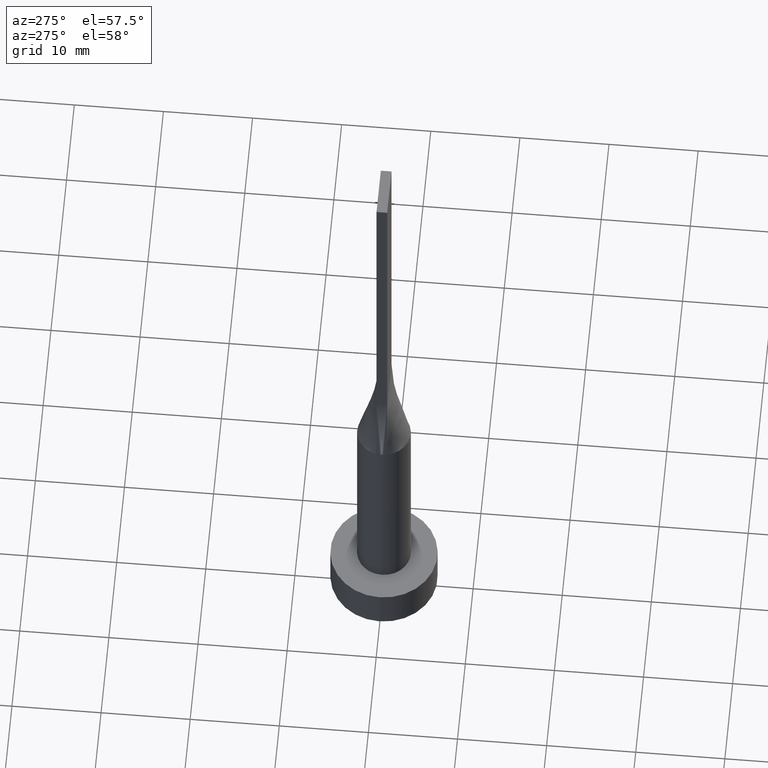
[diagram: clean part render]
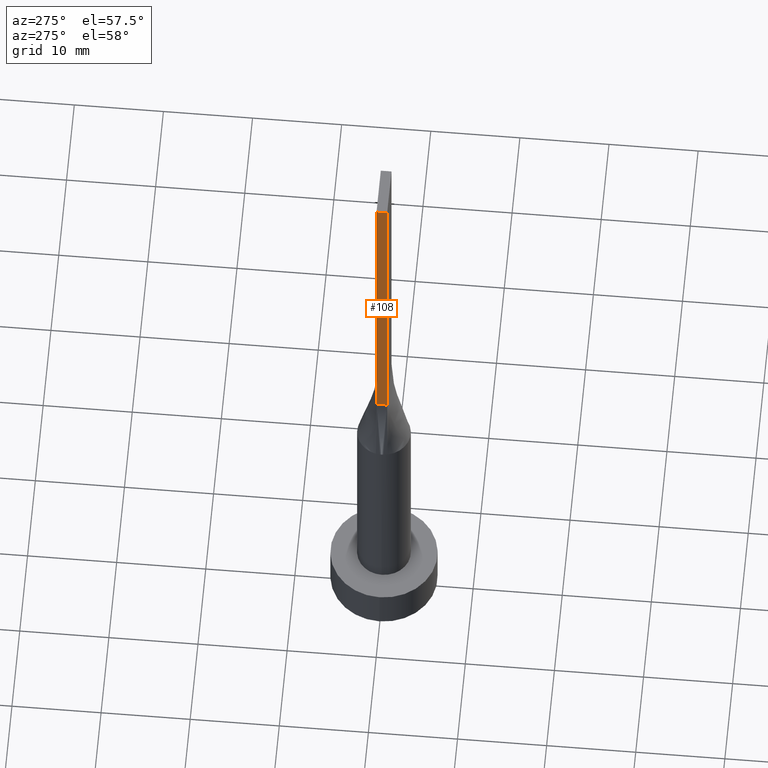
[diagram: same view with one face highlighted and labeled with its STEP entity id]
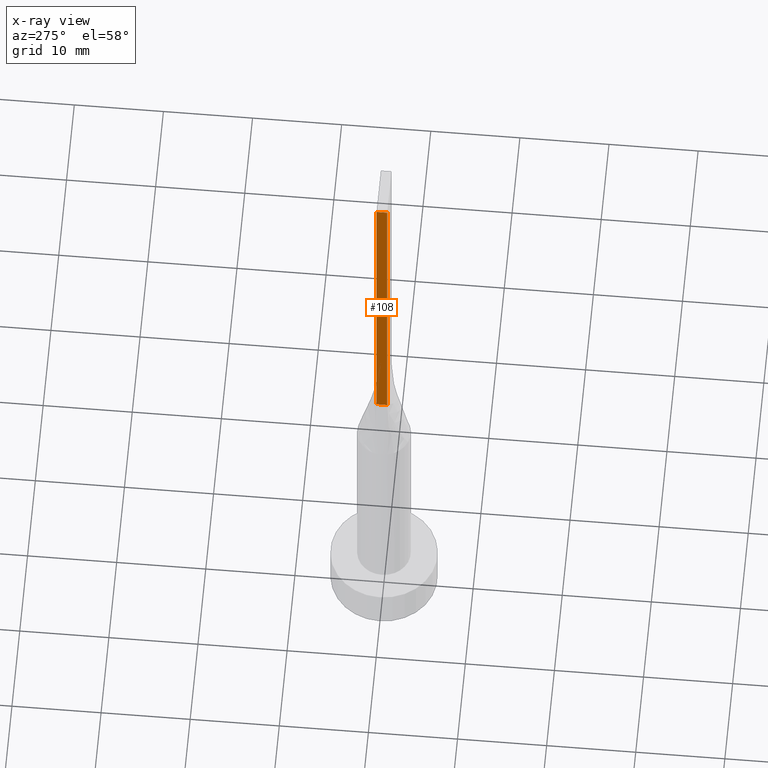
[diagram: x-ray of the same camera — body ghosted, the highlighted face saturated]
A machine part, auxiliary view. The second image highlights one B-rep face of the part: STEP entity #108.
The next image is the same camera in x-ray: the body ghosted, the highlighted face saturated — about 0% of this face is hidden behind the body in this view.
In plain terms, the highlighted planar face has unit normal (1, 0, -0).
Its self-contained STEP definition (entity closure, byte-faithful):
#14 = FACE_OUTER_BOUND ( 'NONE', #288, .T. ) ;
#29 = LINE ( 'NONE', #544, #565 ) ;
#64 = EDGE_CURVE ( 'NONE', #546, #278, #451, .T. ) ;
#69 = CARTESIAN_POINT ( 'NONE',  ( -2.750000000000000000, 0.6000000000000001998, 80.00000000000000000 ) ) ;
#82 = VERTEX_POINT ( 'NONE', #309 ) ;
#89 = DIRECTION ( 'NONE',  ( -0.000000000000000000, 0.000000000000000000, -1.000000000000000000 ) ) ;
#99 = CARTESIAN_POINT ( 'NONE',  ( -2.750000000000000000, 0.6000000000000001998, 40.00000000000000000 ) ) ;
#108 = ADVANCED_FACE ( 'NONE', ( #14 ), #133, .F. ) ;
#127 = VERTEX_POINT ( 'NONE', #161 ) ;
#133 = PLANE ( 'NONE',  #317 ) ;
#143 = CARTESIAN_POINT ( 'NONE',  ( -2.750000000000000000, 0.6000000000000001998, 80.00000000000000000 ) ) ;
#148 = ORIENTED_EDGE ( 'NONE', *, *, #379, .F. ) ;
#158 = CARTESIAN_POINT ( 'NONE',  ( -2.750000000000000000, 0.6000000000000001998, 40.00000000000000000 ) ) ;
#161 = CARTESIAN_POINT ( 'NONE',  ( -2.750000000000000000, -0.5999999999999994227, 40.00000000000000000 ) ) ;
#164 = VECTOR ( 'NONE', #227, 1000.000000000000000 ) ;
#191 = VECTOR ( 'NONE', #357, 1000.000000000000000 ) ;
#205 = ORIENTED_EDGE ( 'NONE', *, *, #217, .T. ) ;
#217 = EDGE_CURVE ( 'NONE', #278, #127, #378, .T. ) ;
#219 = ORIENTED_EDGE ( 'NONE', *, *, #319, .F. ) ;
#227 = DIRECTION ( 'NONE',  ( -0.000000000000000000, -0.000000000000000000, -1.000000000000000000 ) ) ;
#278 = VERTEX_POINT ( 'NONE', #99 ) ;
#288 = EDGE_LOOP ( 'NONE', ( #205, #148, #219, #424 ) ) ;
#305 = VECTOR ( 'NONE', #519, 1000.000000000000000 ) ;
#309 = CARTESIAN_POINT ( 'NONE',  ( -2.750000000000000000, -0.5999999999999994227, 80.00000000000000000 ) ) ;
#317 = AXIS2_PLACEMENT_3D ( 'NONE', #143, #407, #89 ) ;
#319 = EDGE_CURVE ( 'NONE', #546, #82, #396, .T. ) ;
#357 = DIRECTION ( 'NONE',  ( 0.000000000000000000, -1.000000000000000000, 0.000000000000000000 ) ) ;
#367 = CARTESIAN_POINT ( 'NONE',  ( -2.750000000000000000, 0.6000000000000001998, 80.00000000000000000 ) ) ;
#378 = LINE ( 'NONE', #158, #305 ) ;
#379 = EDGE_CURVE ( 'NONE', #82, #127, #29, .T. ) ;
#396 = LINE ( 'NONE', #530, #191 ) ;
#407 = DIRECTION ( 'NONE',  ( 1.000000000000000000, 0.000000000000000000, -0.000000000000000000 ) ) ;
#424 = ORIENTED_EDGE ( 'NONE', *, *, #64, .T. ) ;
#451 = LINE ( 'NONE', #367, #164 ) ;
#483 = DIRECTION ( 'NONE',  ( -0.000000000000000000, -0.000000000000000000, -1.000000000000000000 ) ) ;
#519 = DIRECTION ( 'NONE',  ( 0.000000000000000000, -1.000000000000000000, 0.000000000000000000 ) ) ;
#530 = CARTESIAN_POINT ( 'NONE',  ( -2.750000000000000000, 0.6000000000000001998, 80.00000000000000000 ) ) ;
#544 = CARTESIAN_POINT ( 'NONE',  ( -2.750000000000000000, -0.5999999999999994227, 80.00000000000000000 ) ) ;
#546 = VERTEX_POINT ( 'NONE', #69 ) ;
#565 = VECTOR ( 'NONE', #483, 1000.000000000000000 ) ;